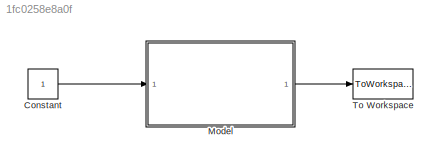
MODEL slx_1fc0258e8a0f
KIND model
WORKSPACE source: MAT-file member
WORKSPACE A = 10
BLOCK [Constant] Constant
BLOCK [ModelReference] Model
  CopyOfModelName = test_create_subsystem.slx
  DefaultDataLogging = on
  ModelNameDialog = test_create_subsystem.slx
  ModelReferenceVersion = 1.17
  Ports = [1, 1]
BLOCK [ToWorkspace] To Workspace
  MaxDataPoints = inf
  Ports = [1]
  SampleTime = -1
  VariableName = out
LINE Constant:1 -> Model:1
LINE Model:1 -> To Workspace:1
